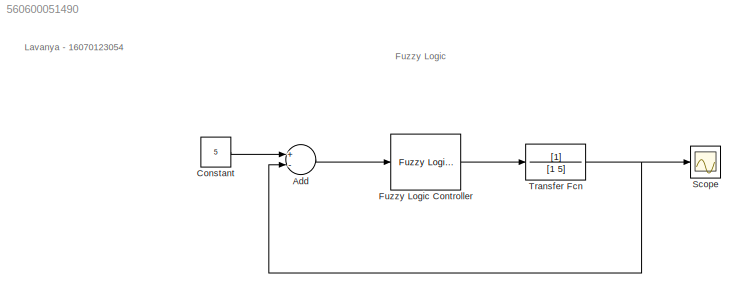
MODEL slx_560600051490
KIND model
CONFIG AbsTol = auto
CONFIG EnableMultiTasking = off
CONFIG FixedStep = auto
CONFIG MaxStep = auto
CONFIG MinStep = auto
CONFIG RelTol = 1e-3
CONFIG SampleTimeConstraint = Unconstrained
CONFIG Solver = VariableStepAuto
CONFIG SolverName = VariableStepAuto
CONFIG StartTime = 0.0
CONFIG StopTime = 10.0
BLOCK [Sum] Add
  InputSameDT = off
  Inputs = +-
  OutDataTypeStr = Inherit: Inherit via internal rule
  Ports = [2, 1]
  SaturateOnIntegerOverflow = off
BLOCK [Constant] Constant
  Value = 5
BLOCK [Reference] Fuzzy Logic Controller  REF=fuzblock/Fuzzy Logic   (lib defined in mdl_858b3b3e7478)
Controller
  Ports = [1, 1]
  SourceBlock = fuzblock/Fuzzy Logic \nController
  SourceProductBaseCode = FL
  SourceProductName = Fuzzy Logic Toolbox
  SourceType = Fuzzy Inference System
BLOCK [Scope] Scope
  Floating = off
  NumInputPorts = 1
  Ports = [1]
  ScopeSpecificationString = Simulink.scopes.TimeScopeBlockCfg('CurrentConfiguration', extmgr.ConfigurationSet(extmgr.Configuration('Core','General UI',true),extmgr.Configuration('Core','Source UI',true),extmgr.Configuration('Sources','WiredSimulink',true),extmgr.Configuration('Visuals','Time Domain',true,'SerializedDisplays',{struct('MinYLimReal','-0.54487','MaxYLimReal','4.90383','YLabelReal','','MinYLimMag','0.00000','MaxY...<+1332ch>
BLOCK [TransferFcn] Transfer Fcn
  Denominator = [1 5]
ANNOTATION (root): Lavanya - 16070123054
ANNOTATION (root): Fuzzy Logic
LINE Add:1 -> Fuzzy Logic Controller:1
LINE Constant:1 -> Add:1
LINE Fuzzy Logic Controller:1 -> Transfer Fcn:1
NET Transfer Fcn:1 -> Add:2, Scope:1
note: NET lines group one-source signal fan-out (src -> all destinations, sorted); 1:1 wires keep LINE
